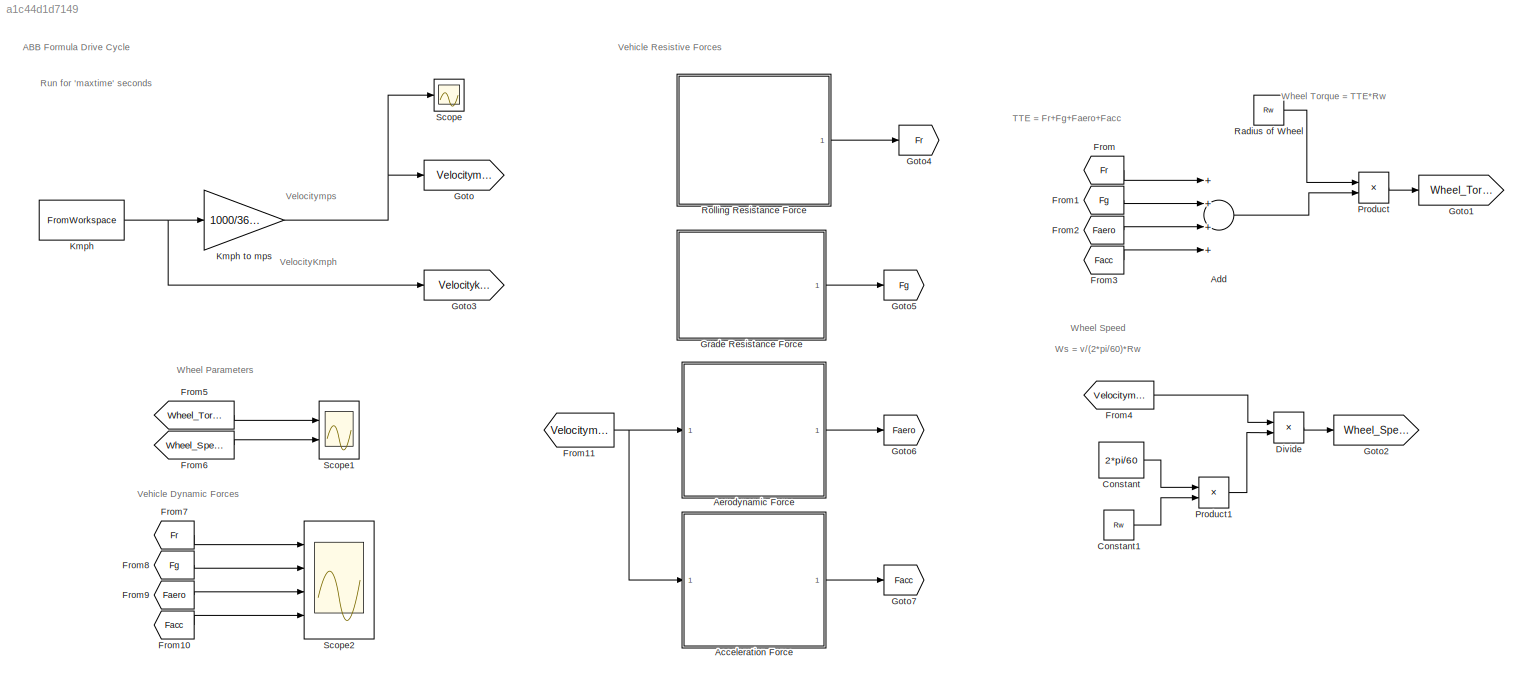
MODEL slx_a1c44d1d7149
KIND model
CONFIG AbsTol = auto
CONFIG FixedStep = auto
CONFIG MaxStep = auto
CONFIG MinStep = auto
CONFIG RelTol = 1e-3
CONFIG SampleTimeConstraint = Unconstrained
CONFIG Solver = ode45
CONFIG SolverMode = Auto
CONFIG SolverName = ode45
CONFIG StartTime = 0.0
CONFIG StopTime = maxtime
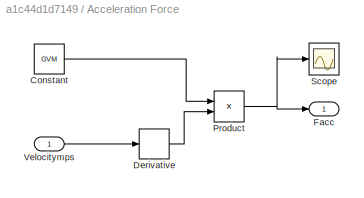
BLOCK [SubSystem] Acceleration Force
  Ports = [1, 1]
  RequestExecContextInheritance = off
BLOCK [Constant] Acceleration Force/Constant
  Value = GVM
BLOCK [Derivative] Acceleration Force/Derivative
BLOCK [Outport] Acceleration Force/Facc
  IconDisplay = Port number
BLOCK [Product] Acceleration Force/Product
  InputSameDT = off
  OutDataTypeStr = Inherit: Inherit via internal rule
  Ports = [2, 1]
  RndMeth = Floor
  SaturateOnIntegerOverflow = off
BLOCK [Scope] Acceleration Force/Scope
  Floating = off
  LimitDataPoints = off
  NumInputPorts = 1
  Ports = [1]
  SaveName = ScopeData5
BLOCK [Inport] Acceleration Force/Velocitymps
  IconDisplay = Port number
BLOCK [Sum] Add
  InputSameDT = off
  Inputs = ++++
  OutDataTypeStr = Inherit: Inherit via internal rule
  Ports = [4, 1]
  SaturateOnIntegerOverflow = off
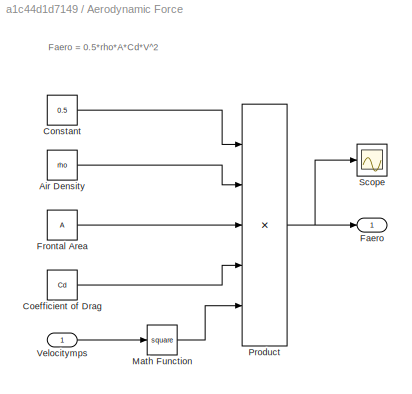
BLOCK [SubSystem] Aerodynamic Force
  Ports = [1, 1]
  RequestExecContextInheritance = off
BLOCK [Constant] Aerodynamic Force/Air Density
  Value = rho
BLOCK [Constant] Aerodynamic Force/Coefficient of Drag
  Value = Cd
BLOCK [Constant] Aerodynamic Force/Constant
  Value = 0.5
BLOCK [Outport] Aerodynamic Force/Faero
  IconDisplay = Port number
BLOCK [Constant] Aerodynamic Force/Frontal Area
  Value = A
BLOCK [Math] Aerodynamic Force/Math Function
  Operator = square
  Ports = [1, 1]
BLOCK [Product] Aerodynamic Force/Product
  InputSameDT = off
  Inputs = 5
  OutDataTypeStr = Inherit: Inherit via internal rule
  Ports = [5, 1]
  RndMeth = Floor
  SaturateOnIntegerOverflow = off
BLOCK [Scope] Aerodynamic Force/Scope
  Floating = off
  LimitDataPoints = off
  NumInputPorts = 1
  Ports = [1]
  SaveName = ScopeData3
BLOCK [Inport] Aerodynamic Force/Velocitymps
  IconDisplay = Port number
BLOCK [Constant] Constant
  Value = 2*pi/60
BLOCK [Constant] Constant1
  Value = Rw
BLOCK [Product] Divide
  InputSameDT = off
  Inputs = */
  OutDataTypeStr = Inherit: Inherit via internal rule
  Ports = [2, 1]
  RndMeth = Floor
  SaturateOnIntegerOverflow = off
BLOCK [From] From
  GotoTag = Fr
BLOCK [From] From1
  GotoTag = Fg
BLOCK [From] From10
  GotoTag = Facc
BLOCK [From] From11
  GotoTag = Velocitymps
BLOCK [From] From2
  GotoTag = Faero
BLOCK [From] From3
  GotoTag = Facc
BLOCK [From] From4
  GotoTag = Velocitymps
BLOCK [From] From5
  GotoTag = Wheel_Torque
BLOCK [From] From6
  GotoTag = Wheel_Speed
BLOCK [From] From7
  GotoTag = Fr
BLOCK [From] From8
  GotoTag = Fg
BLOCK [From] From9
  GotoTag = Faero
BLOCK [Goto] Goto
  GotoTag = Velocitymps
BLOCK [Goto] Goto1
  GotoTag = Wheel_Torque
BLOCK [Goto] Goto2
  GotoTag = Wheel_Speed
BLOCK [Goto] Goto3
  GotoTag = Velocitykmph
BLOCK [Goto] Goto4
  GotoTag = Fr
BLOCK [Goto] Goto5
  GotoTag = Fg
BLOCK [Goto] Goto6
  GotoTag = Faero
BLOCK [Goto] Goto7
  GotoTag = Facc
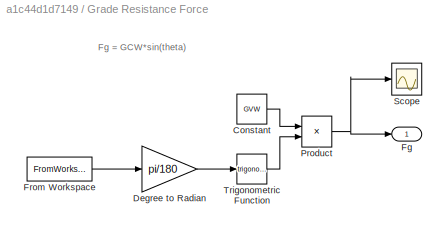
BLOCK [SubSystem] Grade Resistance Force
  Ports = [0, 1]
  RequestExecContextInheritance = off
BLOCK [Constant] Grade Resistance Force/Constant
  Value = GVW
BLOCK [Gain] Grade Resistance Force/Degree to Radian
  Gain = pi/180
  OutDataTypeStr = Inherit: Inherit via internal rule
  ParamDataTypeStr = Inherit: Inherit via internal rule
  SaturateOnIntegerOverflow = off
BLOCK [Outport] Grade Resistance Force/Fg
  IconDisplay = Port number
BLOCK [FromWorkspace] Grade Resistance Force/From Workspace
  SampleTime = 0
  VariableName = Grade
  ZeroCross = on
BLOCK [Product] Grade Resistance Force/Product
  InputSameDT = off
  OutDataTypeStr = Inherit: Inherit via internal rule
  Ports = [2, 1]
  RndMeth = Floor
  SaturateOnIntegerOverflow = off
BLOCK [Scope] Grade Resistance Force/Scope
  Floating = off
  LimitDataPoints = off
  NumInputPorts = 1
  Ports = [1]
  SaveName = ScopeData2
BLOCK [Trigonometry] Grade Resistance Force/Trigonometric Function
  Ports = [1, 1]
BLOCK [FromWorkspace] Kmph
  SampleTime = 0
  VariableName = Drive
  ZeroCross = on
BLOCK [Gain] Kmph to mps
  Gain = 1000/3600
  OutDataTypeStr = Inherit: Inherit via internal rule
  ParamDataTypeStr = Inherit: Inherit via internal rule
  SaturateOnIntegerOverflow = off
BLOCK [Product] Product
  InputSameDT = off
  OutDataTypeStr = Inherit: Inherit via internal rule
  Ports = [2, 1]
  RndMeth = Floor
  SaturateOnIntegerOverflow = off
BLOCK [Product] Product1
  InputSameDT = off
  OutDataTypeStr = Inherit: Inherit via internal rule
  Ports = [2, 1]
  RndMeth = Floor
  SaturateOnIntegerOverflow = off
BLOCK [Constant] Radius of Wheel
  Value = Rw
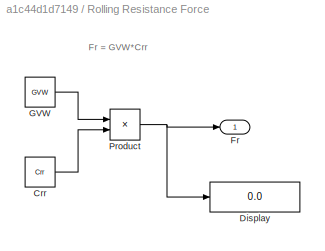
BLOCK [SubSystem] Rolling Resistance Force
  Ports = [0, 1]
  RequestExecContextInheritance = off
BLOCK [Constant] Rolling Resistance Force/Crr
  Value = Crr
BLOCK [Display] Rolling Resistance Force/Display
  Decimation = 1
  Ports = [1]
BLOCK [Outport] Rolling Resistance Force/Fr
  IconDisplay = Port number
BLOCK [Constant] Rolling Resistance Force/GVW
  Value = GVW
BLOCK [Product] Rolling Resistance Force/Product
  InputSameDT = off
  OutDataTypeStr = Inherit: Inherit via internal rule
  Ports = [2, 1]
  RndMeth = Floor
  SaturateOnIntegerOverflow = off
BLOCK [Scope] Scope
  Floating = off
  LimitDataPoints = off
  NumInputPorts = 1
  Ports = [1]
BLOCK [Scope] Scope1
  Floating = off
  LimitDataPoints = off
  NumInputPorts = 2
  Ports = [2]
  SaveName = ScopeData1
  YMax = 5~5
  YMin = -5~-5
BLOCK [Scope] Scope2
  Floating = off
  LimitDataPoints = off
  NumInputPorts = 4
  Ports = [4]
  SaveName = ScopeData4
  YMax = 5~5~5~5
  YMin = -5~-5~-5~-5
ANNOTATION (root): Run for 'maxtime' seconds
ANNOTATION (root): ABB Formula Drive Cycle
ANNOTATION (root): TTE = Fr+Fg+Faero+Facc
ANNOTATION (root): Vehicle Dynamic Forces
ANNOTATION (root): Vehicle Resistive Forces
ANNOTATION (root): Wheel Parameters
ANNOTATION (root): Wheel Speed
ANNOTATION (root): Wheel Torque = TTE*Rw
ANNOTATION (root): Ws = v/(2*pi/60)*Rw
ANNOTATION (root): Velocitymps
ANNOTATION (root): VelocityKmph
ANNOTATION Aerodynamic Force: Faero = 0.5*rho*A*Cd*V^2
ANNOTATION Grade Resistance Force: Fg = GCW*sin(theta)
ANNOTATION Rolling Resistance Force: Fr = GVW*Crr
LINE Acceleration Force/Constant:1 -> Acceleration Force/Product:1
LINE Acceleration Force/Derivative:1 -> Acceleration Force/Product:2
NET Acceleration Force/Product:1 -> Acceleration Force/Facc:1, Acceleration Force/Scope:1
LINE Acceleration Force/Velocitymps:1 -> Acceleration Force/Derivative:1
LINE Acceleration Force:1 -> Goto7:1
LINE Add:1 -> Product:2
LINE Aerodynamic Force/Air Density:1 -> Aerodynamic Force/Product:2
LINE Aerodynamic Force/Coefficient of Drag:1 -> Aerodynamic Force/Product:4
LINE Aerodynamic Force/Constant:1 -> Aerodynamic Force/Product:1
LINE Aerodynamic Force/Frontal Area:1 -> Aerodynamic Force/Product:3
LINE Aerodynamic Force/Math Function:1 -> Aerodynamic Force/Product:5
NET Aerodynamic Force/Product:1 -> Aerodynamic Force/Faero:1, Aerodynamic Force/Scope:1
LINE Aerodynamic Force/Velocitymps:1 -> Aerodynamic Force/Math Function:1
LINE Aerodynamic Force:1 -> Goto6:1
LINE Constant1:1 -> Product1:2
LINE Constant:1 -> Product1:1
LINE Divide:1 -> Goto2:1
LINE From10:1 -> Scope2:4
NET From11:1 -> Acceleration Force:1, Aerodynamic Force:1
LINE From1:1 -> Add:2
LINE From2:1 -> Add:3
LINE From3:1 -> Add:4
LINE From4:1 -> Divide:1
LINE From5:1 -> Scope1:1
LINE From6:1 -> Scope1:2
LINE From7:1 -> Scope2:1
LINE From8:1 -> Scope2:2
LINE From9:1 -> Scope2:3
LINE From:1 -> Add:1
LINE Grade Resistance Force/Constant:1 -> Grade Resistance Force/Product:1
LINE Grade Resistance Force/Degree to Radian:1 -> Grade Resistance Force/Trigonometric Function:1
LINE Grade Resistance Force/From Workspace:1 -> Grade Resistance Force/Degree to Radian:1
NET Grade Resistance Force/Product:1 -> Grade Resistance Force/Fg:1, Grade Resistance Force/Scope:1
LINE Grade Resistance Force/Trigonometric Function:1 -> Grade Resistance Force/Product:2
LINE Grade Resistance Force:1 -> Goto5:1
NET Kmph to mps:1 -> Goto:1, Scope:1
NET Kmph:1 -> Goto3:1, Kmph to mps:1
LINE Product1:1 -> Divide:2
LINE Product:1 -> Goto1:1
LINE Radius of Wheel:1 -> Product:1
LINE Rolling Resistance Force/Crr:1 -> Rolling Resistance Force/Product:2
LINE Rolling Resistance Force/GVW:1 -> Rolling Resistance Force/Product:1
NET Rolling Resistance Force/Product:1 -> Rolling Resistance Force/Display:1, Rolling Resistance Force/Fr:1
LINE Rolling Resistance Force:1 -> Goto4:1
note: NET lines group one-source signal fan-out (src -> all destinations, sorted); 1:1 wires keep LINE
